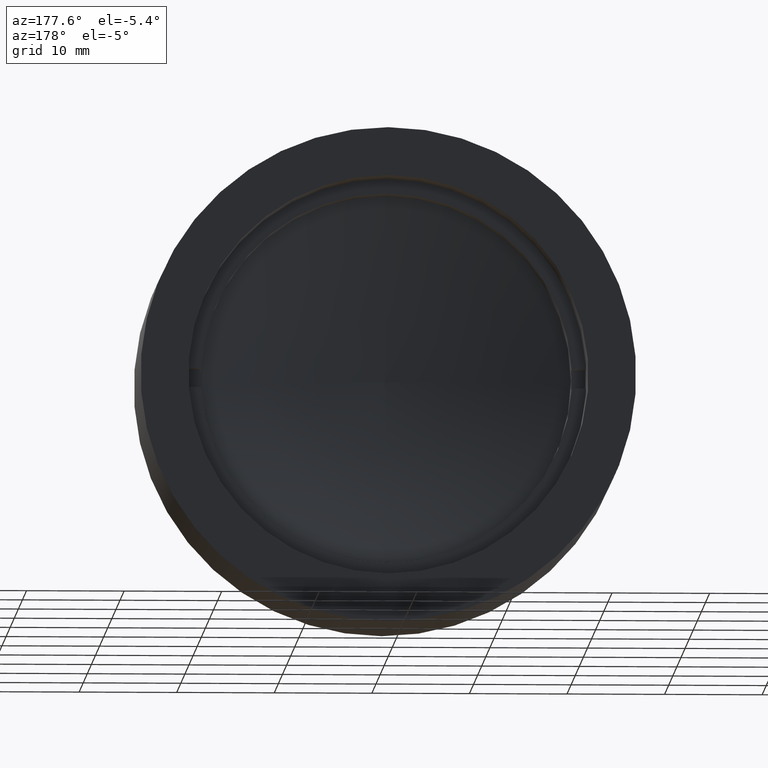
[diagram: clean part render]
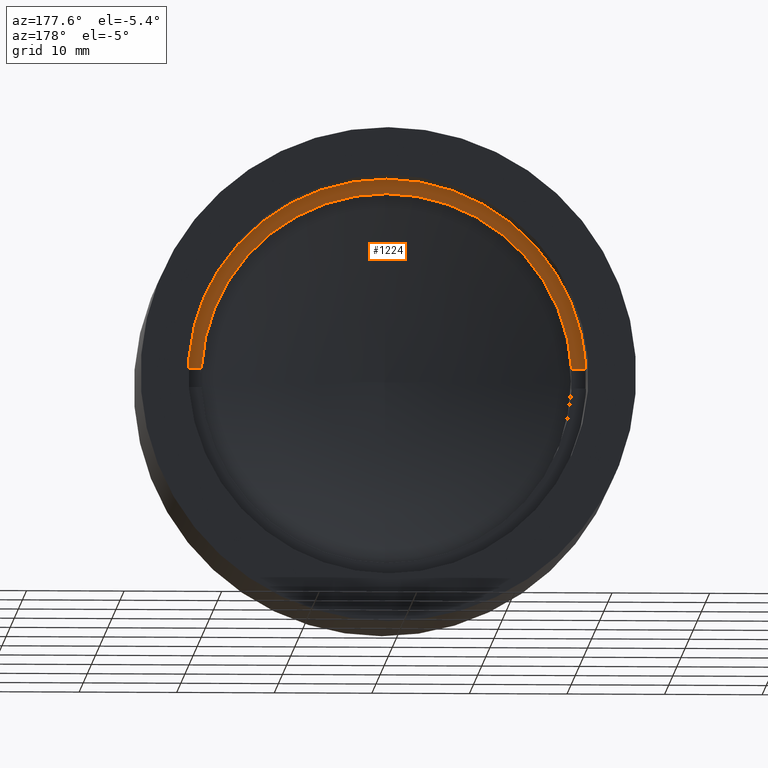
[diagram: same view with one face highlighted and labeled with its STEP entity id]
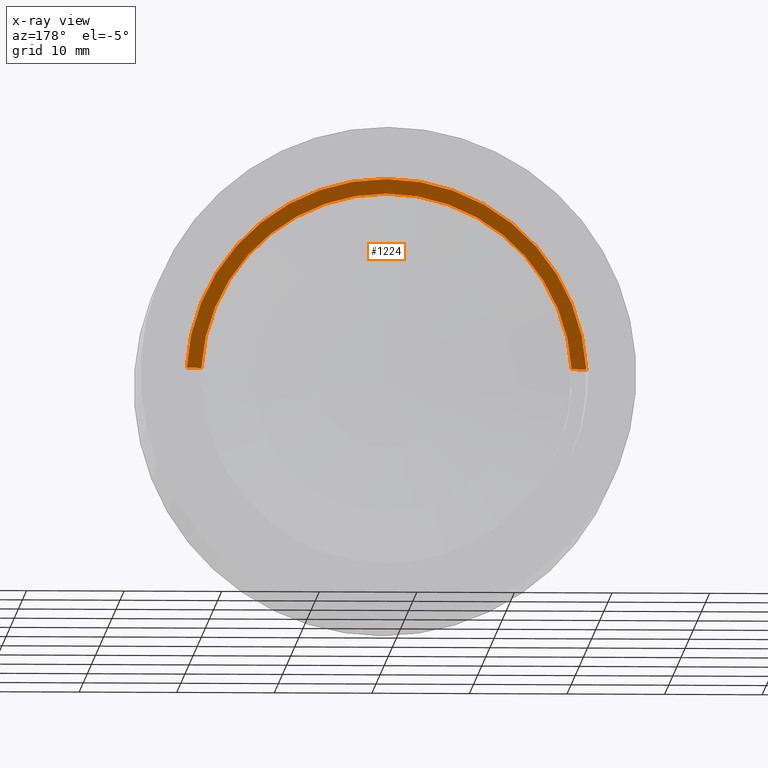
[diagram: x-ray of the same camera — body ghosted, the highlighted face saturated]
A machine part, auxiliary view. The second image highlights one B-rep face of the part: STEP entity #1224.
The next image is the same camera in x-ray: the body ghosted, the highlighted face saturated — about 0% of this face is hidden behind the body in this view.
In plain terms, the highlighted planar face has unit normal (0, -1, 0).
Its self-contained STEP definition (entity closure, byte-faithful):
#21 = EDGE_CURVE ( 'NONE', #978, #450, #1177, .T. ) ;
#90 = ORIENTED_EDGE ( 'NONE', *, *, #915, .F. ) ;
#101 = CARTESIAN_POINT ( 'NONE',  ( -8.905217641199669742, -8.080281845166151555, 45.65036394347453097 ) ) ;
#169 = EDGE_CURVE ( 'NONE', #332, #205, #695, .T. ) ;
#174 = DIRECTION ( 'NONE',  ( 0.000000000000000000, 0.000000000000000000, 1.000000000000000000 ) ) ;
#205 = VERTEX_POINT ( 'NONE', #1033 ) ;
#206 = DIRECTION ( 'NONE',  ( 1.000000000000000000, 0.000000000000000000, 0.000000000000000000 ) ) ;
#238 = ORIENTED_EDGE ( 'NONE', *, *, #1270, .T. ) ;
#248 = AXIS2_PLACEMENT_3D ( 'NONE', #1074, #563, #1290 ) ;
#266 = CARTESIAN_POINT ( 'NONE',  ( -35.75775791381426671, -8.080281845166156884, 27.65036394347453097 ) ) ;
#276 = VECTOR ( 'NONE', #1113, 1000.000000000000000 ) ;
#332 = VERTEX_POINT ( 'NONE', #668 ) ;
#349 = EDGE_CURVE ( 'NONE', #463, #450, #397, .T. ) ;
#364 = DIRECTION ( 'NONE',  ( 0.000000000000000000, 1.000000000000000000, 0.000000000000000000 ) ) ;
#397 = CIRCLE ( 'NONE', #1119, 20.50000000000000355 ) ;
#443 = FACE_OUTER_BOUND ( 'NONE', #1037, .T. ) ;
#450 = VERTEX_POINT ( 'NONE', #1291 ) ;
#463 = VERTEX_POINT ( 'NONE', #626 ) ;
#474 = EDGE_CURVE ( 'NONE', #205, #576, #510, .T. ) ;
#510 = CIRCLE ( 'NONE', #248, 19.00000000000000355 ) ;
#560 = DIRECTION ( 'NONE',  ( 0.000000000000000000, 0.000000000000000000, 1.000000000000000000 ) ) ;
#563 = DIRECTION ( 'NONE',  ( 0.000000000000000000, 1.000000000000000000, 0.000000000000000000 ) ) ;
#576 = VERTEX_POINT ( 'NONE', #101 ) ;
#619 = AXIS2_PLACEMENT_3D ( 'NONE', #847, #664, #560 ) ;
#626 = CARTESIAN_POINT ( 'NONE',  ( -8.905217641199669742, -8.080281845166151555, 47.15036394347453808 ) ) ;
#633 = ORIENTED_EDGE ( 'NONE', *, *, #474, .F. ) ;
#660 = VECTOR ( 'NONE', #206, 1000.000000000000000 ) ;
#662 = CARTESIAN_POINT ( 'NONE',  ( -8.905217641199669742, -8.080281845166151555, 26.65036394347453097 ) ) ;
#664 = DIRECTION ( 'NONE',  ( 0.000000000000000000, 1.000000000000000000, 0.000000000000000000 ) ) ;
#668 = CARTESIAN_POINT ( 'NONE',  ( -29.38081287064296987, -8.080281845166156884, 27.65036394347453097 ) ) ;
#670 = CARTESIAN_POINT ( 'NONE',  ( 10.06844831981062960, -8.080281845166151555, 27.65036394347453097 ) ) ;
#695 = LINE ( 'NONE', #1278, #660 ) ;
#706 = AXIS2_PLACEMENT_3D ( 'NONE', #662, #1180, #174 ) ;
#757 = DIRECTION ( 'NONE',  ( 0.000000000000000000, 0.000000000000000000, 1.000000000000000000 ) ) ;
#799 = CIRCLE ( 'NONE', #706, 19.00000000000000355 ) ;
#847 = CARTESIAN_POINT ( 'NONE',  ( -8.905217641199669742, -8.080281845166151555, 26.65036394347453097 ) ) ;
#864 = DIRECTION ( 'NONE',  ( 0.000000000000000000, -1.000000000000000000, 0.000000000000000000 ) ) ;
#915 = EDGE_CURVE ( 'NONE', #576, #978, #799, .T. ) ;
#925 = CIRCLE ( 'NONE', #619, 20.50000000000000355 ) ;
#955 = PLANE ( 'NONE',  #1207 ) ;
#978 = VERTEX_POINT ( 'NONE', #670 ) ;
#1033 = CARTESIAN_POINT ( 'NONE',  ( -27.87888360220997086, -8.080281845166151555, 27.65036394347453097 ) ) ;
#1037 = EDGE_LOOP ( 'NONE', ( #238, #1155, #1186, #90, #633, #1179 ) ) ;
#1046 = DIRECTION ( 'NONE',  ( 0.000000000000000000, 0.000000000000000000, -1.000000000000000000 ) ) ;
#1074 = CARTESIAN_POINT ( 'NONE',  ( -8.905217641199669742, -8.080281845166151555, 26.65036394347453097 ) ) ;
#1113 = DIRECTION ( 'NONE',  ( 1.000000000000000000, 0.000000000000000000, 0.000000000000000000 ) ) ;
#1119 = AXIS2_PLACEMENT_3D ( 'NONE', #1274, #364, #757 ) ;
#1155 = ORIENTED_EDGE ( 'NONE', *, *, #349, .T. ) ;
#1177 = LINE ( 'NONE', #266, #276 ) ;
#1179 = ORIENTED_EDGE ( 'NONE', *, *, #169, .F. ) ;
#1180 = DIRECTION ( 'NONE',  ( 0.000000000000000000, 1.000000000000000000, 0.000000000000000000 ) ) ;
#1186 = ORIENTED_EDGE ( 'NONE', *, *, #21, .F. ) ;
#1207 = AXIS2_PLACEMENT_3D ( 'NONE', #1259, #864, #1046 ) ;
#1224 = ADVANCED_FACE ( 'NONE', ( #443 ), #955, .F. ) ;
#1259 = CARTESIAN_POINT ( 'NONE',  ( 10.09478235880033026, -8.080281845166156884, 26.65036394347453097 ) ) ;
#1270 = EDGE_CURVE ( 'NONE', #332, #463, #925, .T. ) ;
#1274 = CARTESIAN_POINT ( 'NONE',  ( -8.905217641199669742, -8.080281845166151555, 26.65036394347453097 ) ) ;
#1278 = CARTESIAN_POINT ( 'NONE',  ( -35.75775791381426671, -8.080281845166156884, 27.65036394347453097 ) ) ;
#1290 = DIRECTION ( 'NONE',  ( 0.000000000000000000, 0.000000000000000000, 1.000000000000000000 ) ) ;
#1291 = CARTESIAN_POINT ( 'NONE',  ( 11.57037758824357887, -8.080281845166156884, 27.65036394347453097 ) ) ;